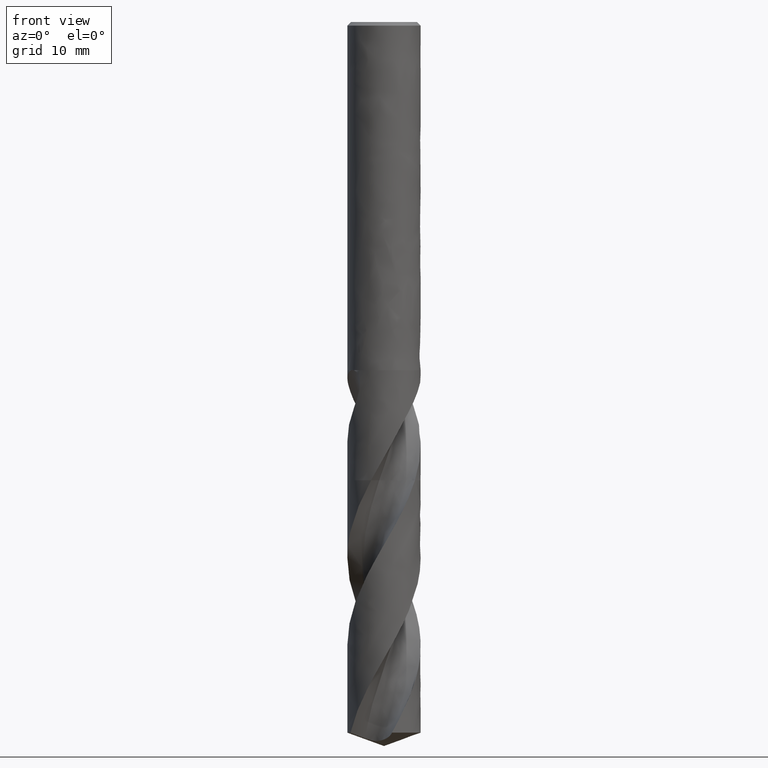
[diagram: clean part render]
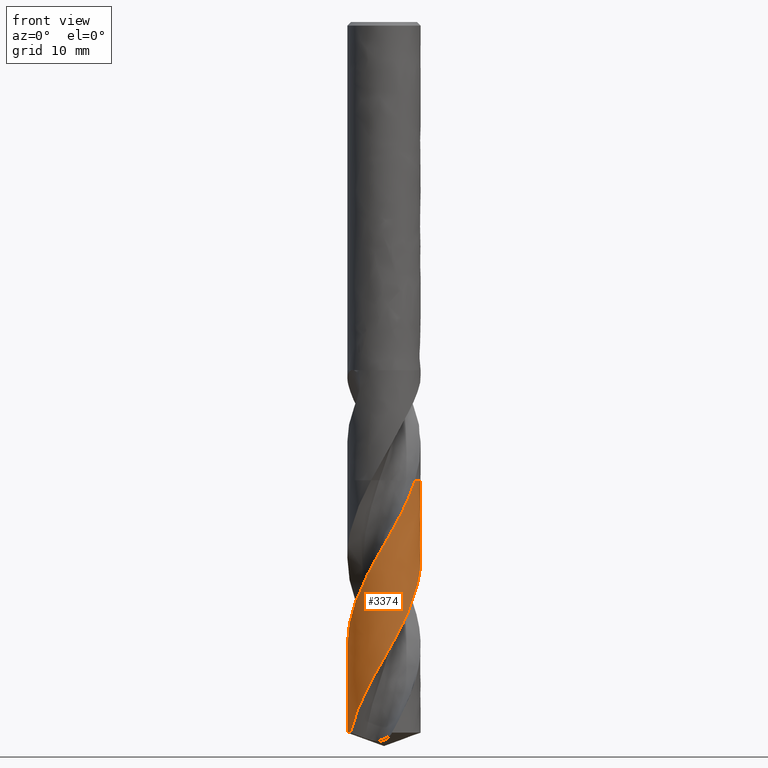
[diagram: same view with one face highlighted and labeled with its STEP entity id]
A machine part, front view. The second image highlights one B-rep face of the part: STEP entity #3374.
In plain terms, the highlighted face is a freeform B-spline surface patch.
Its self-contained STEP definition (entity closure, byte-faithful):
#1934 = VERTEX_POINT('', #1935);
#1935 = CARTESIAN_POINT('', (3.38773745448961, -2.12678982023335, -50.));
#2014 = EDGE_CURVE('', #2015, #1934, #2017, .T.);
#2015 = VERTEX_POINT('', #2016);
#2016 = CARTESIAN_POINT('', (1.40999590410393, 3.74324879622103, -50.));
#2017 = CIRCLE('', #2018, 4.);
#2018 = AXIS2_PLACEMENT_3D('', #2019, #2020, #2021);
#2019 = CARTESIAN_POINT('', (1.87469972832732E-31, 3.06161699786838E-15, -50.));
#2020 = DIRECTION('', (3.74939945665464E-33, 6.12323399573677E-17, -1.));
#2021 = DIRECTION('', (-1., 6.12323399573677E-17, 0.));
#3099 = EDGE_CURVE('', #2015, #3100, #3102, .T.);
#3100 = VERTEX_POINT('', #3101);
#3101 = CARTESIAN_POINT('', (-3.65660638406482, -1.62148997900584, -77.5441190629352));
#3102 = B_SPLINE_CURVE_WITH_KNOTS('', 3, (#3103, #3104, #3105, #3106, #3107, #3108, #3109, #3110, #3111, #3112, #3113, #3114, #3115, #3116, #3117, #3118, #3119, #3120, #3121, #3122, #3123, #3124, #3125, #3126, #3127, #3128, #3129, #3130, #3131, #3132, #3133, #3134, #3135, #3136, #3137, #3138, #3139, #3140, #3141, #3142, #3143, #3144, #3145, #3146, #3147, #3148, #3149, #3150, #3151, #3152, #3153, #3154, #3155, #3156, #3157, #3158, #3159, #3160, #3161, #3162, #3163, #3164, #3165, #3166, #3167, #3168, #3169, #3170, #3171, #3172, #3173, #3174, #3175, #3176, #3177, #3178, #3179, #3180, #3181, #3182, #3183, #3184, #3185, #3186, #3187, #3188, #3189, #3190, #3191, #3192, #3193, #3194, #3195, #3196, #3197, #3198, #3199, #3200, #3201, #3202, #3203, #3204, #3205, #3206, #3207, #3208, #3209, #3210, #3211, #3212, #3213, #3214, #3215, #3216, #3217, #3218, #3219, #3220, #3221, #3222, #3223, #3224, #3225, #3226, #3227, #3228, #3229, #3230, #3231, #3232, #3233, #3234, #3235, #3236, #3237, #3238, #3239, #3240, #3241, #3242, #3243, #3244, #3245, #3246, #3247, #3248, #3249, #3250, #3251, #3252, #3253, #3254, #3255, #3256, #3257, #3258, #3259), .UNSPECIFIED., .F., .U., (4, 3, 3, 3, 3, 3, 3, 3, 3, 3, 3, 3, 3, 3, 3, 3, 3, 3, 3, 3, 3, 3, 3, 3, 3, 3, 3, 3, 3, 3, 3, 3, 3, 3, 3, 3, 3, 3, 3, 3, 3, 3, 3, 3, 3, 3, 3, 3, 3, 3, 3, 3, 4), (11.4268068626108, 11.9616800757642, 12.6272618858301, 13.2926948839317, 13.9579844775517, 14.6231321257584, 15.2881389126281, 15.9530055552988, 16.6177323620253, 17.2823194138596, 17.9467661522799, 18.6110713334611, 19.2752331163804, 19.9392494876809, 20.6031178795623, 21.0459015644357, 21.1334563209178, 21.1918374463292, 21.8582133149037, 22.5244226005026, 23.190471233414, 23.8563642372132, 24.5221057489834, 25.1876991614211, 25.8531475318426, 26.5184533700216, 27.1836185664395, 27.8486443610939, 28.5135315119813, 29.1782805091412, 29.8428913615441, 30.5073635233811, 31.1716958404546, 31.8358867402595, 32.4999342546827, 33.163835860998, 33.6066352883651, 33.8035682643855, 33.8619519640975, 34.5283147803556, 35.194512992914, 35.8605523536288, 36.5264378115142, 37.1921735301299, 37.8577629314045, 38.5232089119411, 39.1885138886192, 39.8536797557561, 40.5187078586139, 41.1835989712556, 41.8483534409792, 42.5129713329847, 43.1484255799099), .UNSPECIFIED.);
#3103 = CARTESIAN_POINT('', (1.40999590410393, 3.74324879622103, -50.));
#3104 = CARTESIAN_POINT('', (1.49308468402006, 3.71195115993326, -50.1546105385522));
#3105 = CARTESIAN_POINT('', (1.57513999227531, 3.677881838887, -50.3092643671988));
#3106 = CARTESIAN_POINT('', (1.65594938710066, 3.6411305424773, -50.4638828975783));
#3107 = CARTESIAN_POINT('', (1.7565064199741, 3.59539821977894, -50.6562860293654));
#3108 = CARTESIAN_POINT('', (1.85518483827001, 3.54548861683502, -50.8487324283046));
#3109 = CARTESIAN_POINT('', (1.95160097727128, 3.49159757496677, -51.0411429557391));
#3110 = CARTESIAN_POINT('', (2.04799555938079, 3.43771858215347, -51.2335104636858));
#3111 = CARTESIAN_POINT('', (2.1421691952407, 3.37983754482088, -51.425924227606));
#3112 = CARTESIAN_POINT('', (2.23376045177126, 3.3181793568315, -51.6183025762352));
#3113 = CARTESIAN_POINT('', (2.32533196988081, 3.25653445652174, -51.8106394662691));
#3114 = CARTESIAN_POINT('', (2.41436140271467, 3.19108770037158, -52.0030223135103));
#3115 = CARTESIAN_POINT('', (2.50050828250362, 3.12209197960771, -52.1953689317543));
#3116 = CARTESIAN_POINT('', (2.58663678209458, 3.05311097969052, -52.3876745111477));
#3117 = CARTESIAN_POINT('', (2.66991973377181, 2.98055385726141, -52.5800258746878));
#3118 = CARTESIAN_POINT('', (2.75003855686753, 2.90470100625554, -52.77234137546));
#3119 = CARTESIAN_POINT('', (2.83014041283638, 2.82886421895228, -52.9646161487055));
#3120 = CARTESIAN_POINT('', (2.90711309246561, 2.74970127976023, -53.1569366847626));
#3121 = CARTESIAN_POINT('', (2.98066254811926, 2.66751771769922, -53.3492215093452));
#3122 = CARTESIAN_POINT('', (3.05419650388666, 2.58535147508471, -53.5414658116306));
#3123 = CARTESIAN_POINT('', (3.12433993648487, 2.50013093423394, -53.7337555456956));
#3124 = CARTESIAN_POINT('', (3.1908248690884, 2.4121850374312, -53.9260097493158));
#3125 = CARTESIAN_POINT('', (3.25729581846171, 2.32425763756716, -54.1182235176872));
#3126 = CARTESIAN_POINT('', (3.32013807548924, 2.23356866550899, -54.3104827833417));
#3127 = CARTESIAN_POINT('', (3.37911228012147, 2.14046728504135, -54.5027064126175));
#3128 = CARTESIAN_POINT('', (3.43807408577487, 2.04738547859006, -54.6948896280086));
#3129 = CARTESIAN_POINT('', (3.49319418578606, 1.95185329959305, -54.8871184980914));
#3130 = CARTESIAN_POINT('', (3.54426345611027, 1.85423745881731, -55.0793115852574));
#3131 = CARTESIAN_POINT('', (3.59532194424478, 1.75664222754914, -55.2714640949428));
#3132 = CARTESIAN_POINT('', (3.64235249250526, 1.65692374545173, -55.4636622527336));
#3133 = CARTESIAN_POINT('', (3.68517718456473, 1.55546427743088, -55.6558247034211));
#3134 = CARTESIAN_POINT('', (3.72799275302583, 1.45402642487047, -55.8479462148061));
#3135 = CARTESIAN_POINT('', (3.76662214380322, 1.35080590733129, -56.0401131067647));
#3136 = CARTESIAN_POINT('', (3.8009194666142, 1.24619870338291, -56.2322446047073));
#3137 = CARTESIAN_POINT('', (3.83520938593561, 1.14161408015742, -56.4243346287557));
#3138 = CARTESIAN_POINT('', (3.86518366074517, 1.03559896766727, -56.6164698154659));
#3139 = CARTESIAN_POINT('', (3.89072955841911, 0.928559908268641, -56.8085697014531));
#3140 = CARTESIAN_POINT('', (3.91626986307275, 0.821544284007818, -57.0006275290801));
#3141 = CARTESIAN_POINT('', (3.93739453044704, 0.713460013763939, -57.1927306496108));
#3142 = CARTESIAN_POINT('', (3.95402494523026, 0.604720375460381, -57.3847982952889));
#3143 = CARTESIAN_POINT('', (3.97065165384111, 0.496004970337218, -57.5768231377171));
#3144 = CARTESIAN_POINT('', (3.98279303072067, 0.386589413942062, -57.7688934296659));
#3145 = CARTESIAN_POINT('', (3.99040491914051, 0.276890919496153, -57.9609281305167));
#3146 = CARTESIAN_POINT('', (3.99548185915542, 0.203724755554885, -58.0890104936872));
#3147 = CARTESIAN_POINT('', (3.99854593530938, 0.130415944143399, -58.2171070254769));
#3148 = CARTESIAN_POINT('', (3.99959258297315, 0.0570891428044577, -58.3451938684983));
#3149 = CARTESIAN_POINT('', (3.9997995440344, 0.0425897146317942, -58.3705213878547));
#3150 = CARTESIAN_POINT('', (3.99992765696003, 0.0280892608451649, -58.3958490871068));
#3151 = CARTESIAN_POINT('', (3.99997691819654, 0.0135887414775058, -58.4211767794289));
#3152 = CARTESIAN_POINT('', (4.00000976537174, 0.00391985912608849, -58.4380651729468));
#3153 = CARTESIAN_POINT('', (4.00000755421438, -0.00574909163993609, -58.454953631869));
#3154 = CARTESIAN_POINT('', (3.99997028621707, -0.0154178267119553, -58.4718421005291));
#3155 = CARTESIAN_POINT('', (3.99954490054829, -0.125779038254809, -58.6646110458504));
#3156 = CARTESIAN_POINT('', (3.99454816156746, -0.236137512741472, -58.8574254826022));
#3157 = CARTESIAN_POINT('', (3.98500146307379, -0.34606840263295, -59.0502043824902));
#3158 = CARTESIAN_POINT('', (3.97545715109729, -0.455971811615203, -59.242935090833));
#3159 = CARTESIAN_POINT('', (3.96136111164163, -0.565494641915295, -59.4357113484275));
#3160 = CARTESIAN_POINT('', (3.94276962953226, -0.674216321694049, -59.6284519312699));
#3161 = CARTESIAN_POINT('', (3.92418263065605, -0.782911783840574, -59.8211460357858));
#3162 = CARTESIAN_POINT('', (3.90109461336426, -0.890851943184636, -60.0138858914972));
#3163 = CARTESIAN_POINT('', (3.87359613548959, -0.997623666078735, -60.2065898894798));
#3164 = CARTESIAN_POINT('', (3.84610408291706, -1.10437044066181, -60.3992488601917));
#3165 = CARTESIAN_POINT('', (3.81419228680592, -1.20999340531994, -60.5919535979782));
#3166 = CARTESIAN_POINT('', (3.77798496189085, -1.31408889643231, -60.7846225476999));
#3167 = CARTESIAN_POINT('', (3.74178587421672, -1.41816070560619, -60.977247664839));
#3168 = CARTESIAN_POINT('', (3.70127809926547, -1.52074911756994, -61.1699182352948));
#3169 = CARTESIAN_POINT('', (3.65661895988944, -1.62146161908851, -61.3625533942717));
#3170 = CARTESIAN_POINT('', (3.61196975528331, -1.72215171633456, -61.5551457000723));
#3171 = CARTESIAN_POINT('', (3.56315204619869, -1.82100953630146, -61.747783190695));
#3172 = CARTESIAN_POINT('', (3.51035498840895, -1.91765686590495, -61.9403853915604));
#3173 = CARTESIAN_POINT('', (3.45756943582882, -2.01428313471773, -62.1329456217407));
#3174 = CARTESIAN_POINT('', (3.40078399130775, -2.10874071561892, -62.3255511922651));
#3175 = CARTESIAN_POINT('', (3.3402176839801, -2.20066940352852, -62.5181212610423));
#3176 = CARTESIAN_POINT('', (3.2796643493367, -2.29257840125237, -62.7106500832782));
#3177 = CARTESIAN_POINT('', (3.21530674088565, -2.38199763365565, -62.9032244576476));
#3178 = CARTESIAN_POINT('', (3.14739208291229, -2.46858726327853, -63.095763162496));
#3179 = CARTESIAN_POINT('', (3.07949178170023, -2.55515858836038, -63.2882611657888));
#3180 = CARTESIAN_POINT('', (3.00800808177159, -2.63893701653183, -63.4808046522861));
#3181 = CARTESIAN_POINT('', (2.93321526015368, -2.71960442667708, -63.6733126502439));
#3182 = CARTESIAN_POINT('', (2.8584381132152, -2.80025493097807, -63.8657803034054));
#3183 = CARTESIAN_POINT('', (2.78032201152031, -2.87782935367839, -64.0582930517944));
#3184 = CARTESIAN_POINT('', (2.6991670235884, -2.95203275367549, -64.2507707035476));
#3185 = CARTESIAN_POINT('', (2.61802895474946, -3.0262206838382, -64.4432082277945));
#3186 = CARTESIAN_POINT('', (2.53381885739497, -3.097070461763, -64.6356906835666));
#3187 = CARTESIAN_POINT('', (2.44685978915617, -3.16431306482317, -64.828138049669));
#3188 = CARTESIAN_POINT('', (2.35991878972709, -3.23154169586381, -65.0205454280518));
#3189 = CARTESIAN_POINT('', (2.27019360318728, -3.29519280980748, -65.2129979762779));
#3190 = CARTESIAN_POINT('', (2.17802709346413, -3.35502577935493, -65.4054151681034));
#3191 = CARTESIAN_POINT('', (2.08587973731645, -3.41484631471884, -65.5977923727665));
#3192 = CARTESIAN_POINT('', (1.99125437721323, -3.47087479359434, -65.7902149353443));
#3193 = CARTESIAN_POINT('', (1.89451151963954, -3.52290024013639, -65.9826020268831));
#3194 = CARTESIAN_POINT('', (1.79778885030324, -3.57491483004167, -66.1749489712072));
#3195 = CARTESIAN_POINT('', (1.69891003816756, -3.62294929830343, -66.3673410732612));
#3196 = CARTESIAN_POINT('', (1.59825200864638, -3.66682294593805, -66.559698042081));
#3197 = CARTESIAN_POINT('', (1.49761516360689, -3.71068735992792, -66.7520145274668));
#3198 = CARTESIAN_POINT('', (1.39515767641042, -3.75041105762013, -66.9443757350445));
#3199 = CARTESIAN_POINT('', (1.29127071144342, -3.78584468114691, -67.1367021471128));
#3200 = CARTESIAN_POINT('', (1.18740586102728, -3.82127076187302, -67.3289876184122));
#3201 = CARTESIAN_POINT('', (1.0820682814948, -3.85242357240795, -67.5213178137617));
#3202 = CARTESIAN_POINT('', (0.975659236673937, -3.87918664849899, -67.7136130808872));
#3203 = CARTESIAN_POINT('', (0.869273163413689, -3.90594394698319, -67.9058668353538));
#3204 = CARTESIAN_POINT('', (0.761772106385481, -3.9283245078741, -68.0981656091511));
#3205 = CARTESIAN_POINT('', (0.653563898900314, -3.94624558663729, -68.290429163891));
#3206 = CARTESIAN_POINT('', (0.545379467507169, -3.96416272768422, -68.4826504734438));
#3207 = CARTESIAN_POINT('', (0.436444390669608, -3.97762961824081, -68.6749169208946));
#3208 = CARTESIAN_POINT('', (0.327171043884863, -3.98659743491156, -68.8671481382657));
#3209 = CARTESIAN_POINT('', (0.254289498001415, -3.99257865870853, -68.9953597168555));
#3210 = CARTESIAN_POINT('', (0.181240905987405, -3.99656078186648, -69.1235852663697));
#3211 = CARTESIAN_POINT('', (0.108148902913998, -3.99853770956314, -69.251801312544));
#3212 = CARTESIAN_POINT('', (0.0756415761224209, -3.99941693891761, -69.3088247998976));
#3213 = CARTESIAN_POINT('', (0.0431237307765978, -3.99989971652303, -69.3658497822506));
#3214 = CARTESIAN_POINT('', (0.0106061822396381, -3.99998593858757, -69.4228741546914));
#3215 = CARTESIAN_POINT('', (0.000965872995775944, -4.0000115003966, -69.4397798751255));
#3216 = CARTESIAN_POINT('', (-0.00867447814873041, -4.00000221089218, -69.4566856602826));
#3217 = CARTESIAN_POINT('', (-0.0183145904558098, -3.9999580717523, -69.4735914547201));
#3218 = CARTESIAN_POINT('', (-0.128342088159463, -3.99945428933179, -69.6665458726139));
#3219 = CARTESIAN_POINT('', (-0.238363443380186, -3.99440675503834, -69.8595452411269));
#3220 = CARTESIAN_POINT('', (-0.347957579527326, -3.98483695059793, -70.0525096305813));
#3221 = CARTESIAN_POINT('', (-0.457524643935411, -3.97526951007275, -70.2454263543322));
#3222 = CARTESIAN_POINT('', (-0.566711146596864, -3.96117800080761, -70.4383880887255));
#3223 = CARTESIAN_POINT('', (-0.675100341063876, -3.9426183596052, -70.6313146604185));
#3224 = CARTESIAN_POINT('', (-0.783463690635106, -3.92406314386231, -70.8241952296741));
#3225 = CARTESIAN_POINT('', (-0.891074946651873, -3.90103429186233, -71.0171211320287));
#3226 = CARTESIAN_POINT('', (-0.997525151050735, -3.87362150616467, -71.2100115639367));
#3227 = CARTESIAN_POINT('', (-1.10395075782277, -3.84621505478526, -71.4028574243299));
#3228 = CARTESIAN_POINT('', (-1.20925895809284, -3.81441560979175, -71.5957487204104));
#3229 = CARTESIAN_POINT('', (-1.31305037090825, -3.77834603013777, -71.7886045662491));
#3230 = CARTESIAN_POINT('', (-1.41681844389823, -3.74228456153719, -71.9814170441285));
#3231 = CARTESIAN_POINT('', (-1.5191129010354, -3.70194007777125, -72.1742745629408));
#3232 = CARTESIAN_POINT('', (-1.6195449810653, -3.65746825745709, -72.3670971461992));
#3233 = CARTESIAN_POINT('', (-1.71995498783923, -3.61300621128953, -72.559877350347));
#3234 = CARTESIAN_POINT('', (-1.8185458315325, -3.56439984866119, -72.7527021853197));
#3235 = CARTESIAN_POINT('', (-1.91494247402359, -3.51183645991387, -72.9454922981389));
#3236 = CARTESIAN_POINT('', (-2.01131834503368, -3.45928439748874, -73.1382408686796));
#3237 = CARTESIAN_POINT('', (-2.10554150331513, -3.402754945842, -73.3310342691964));
#3238 = CARTESIAN_POINT('', (-2.19725487788181, -3.34246480933227, -73.5237926557554));
#3239 = CARTESIAN_POINT('', (-2.28894881895567, -3.28218744792693, -73.7165101980129));
#3240 = CARTESIAN_POINT('', (-2.37817150691938, -3.21812641461839, -73.90927291245));
#3241 = CARTESIAN_POINT('', (-2.46458633789989, -3.15052601687991, -74.102000319514));
#3242 = CARTESIAN_POINT('', (-2.55098310028342, -3.08293975380245, -74.2946874289369));
#3243 = CARTESIAN_POINT('', (-2.63460789782517, -3.01178844941478, -74.4874197008728));
#3244 = CARTESIAN_POINT('', (-2.71514561621003, -2.93734306521649, -74.6801168371614));
#3245 = CARTESIAN_POINT('', (-2.79566665421297, -2.86291309960053, -74.8727740634315));
#3246 = CARTESIAN_POINT('', (-2.87313493625636, -2.78515981865629, -75.0654759449235));
#3247 = CARTESIAN_POINT('', (-2.94725782344943, -2.70438002546167, -75.2581432404938));
#3248 = CARTESIAN_POINT('', (-3.02136544194891, -2.62361687222751, -75.4507708482157));
#3249 = CARTESIAN_POINT('', (-3.09216031746436, -2.53979436186801, -75.6434428303063));
#3250 = CARTESIAN_POINT('', (-3.15937515902989, -2.45323227691648, -75.8360802924439));
#3251 = CARTESIAN_POINT('', (-3.22657618715754, -2.36668798148816, -76.0286781653248));
#3252 = CARTESIAN_POINT('', (-3.29022664452004, -2.27736926062665, -76.2213207333503));
#3253 = CARTESIAN_POINT('', (-3.35008747349715, -2.18561522686804, -76.4139283976164));
#3254 = CARTESIAN_POINT('', (-3.40993600371465, -2.09388004451567, -76.6064964895043));
#3255 = CARTESIAN_POINT('', (-3.46602059819903, -1.99967361856814, -76.7991095949238));
#3256 = CARTESIAN_POINT('', (-3.51813164001078, -1.90335224368877, -76.9916876111313));
#3257 = CARTESIAN_POINT('', (-3.56795603268706, -1.81125748146071, -77.175815242565));
#3258 = CARTESIAN_POINT('', (-3.61416685885146, -1.71719494224404, -77.3599823020643));
#3259 = CARTESIAN_POINT('', (-3.65660638406483, -1.62148997900584, -77.5441190629352));
#3374 = ADVANCED_FACE('', (#3375), #3508, .T.);
#3375 = FACE_OUTER_BOUND('', #3376, .T.);
#3376 = EDGE_LOOP('', (#3377, #3378, #3396, #3492, #3500, #3507));
#3377 = ORIENTED_EDGE('', *, *, #2014, .T.);
#3378 = ORIENTED_EDGE('', *, *, #3379, .T.);
#3379 = EDGE_CURVE('', #1934, #3380, #3382, .T.);
#3380 = VERTEX_POINT('', #3381);
#3381 = CARTESIAN_POINT('', (2.66334513394789, -2.98439151209691, -51.9550906752952));
#3382 = B_SPLINE_CURVE_WITH_KNOTS('', 3, (#3383, #3384, #3385, #3386, #3387, #3388, #3389, #3390, #3391, #3392, #3393, #3394, #3395), .UNSPECIFIED., .F., .U., (4, 3, 3, 3, 4), (4.83867168671351, 5.16076664063144, 5.82604712896318, 6.49118252045048, 7.09483472491919), .UNSPECIFIED.);
#3383 = CARTESIAN_POINT('', (3.38773745448961, -2.12678982023335, -50.));
#3384 = CARTESIAN_POINT('', (3.35923111498313, -2.17219721927099, -50.093020409842));
#3385 = CARTESIAN_POINT('', (3.32980810132896, -2.21703667288572, -50.1860633643976));
#3386 = CARTESIAN_POINT('', (3.29950390697985, -2.26125495418466, -50.2790883036903));
#3387 = CARTESIAN_POINT('', (3.23691121817849, -2.35258690278526, -50.4712293983797));
#3388 = CARTESIAN_POINT('', (3.1705140812465, -2.44133084675263, -50.6634162184879));
#3389 = CARTESIAN_POINT('', (3.10057151391889, -2.52714389916259, -50.8555664906883));
#3390 = CARTESIAN_POINT('', (3.03064420097795, -2.61293823585288, -51.0476748551541));
#3391 = CARTESIAN_POINT('', (2.9571445793266, -2.69583773783738, -51.2398305317654));
#3392 = CARTESIAN_POINT('', (2.88036123332915, -2.77552142227989, -51.4319527564352));
#3393 = CARTESIAN_POINT('', (2.81067551720118, -2.84783937797662, -51.606315759718));
#3394 = CARTESIAN_POINT('', (2.73825981165526, -2.91753579242191, -51.7807159452654));
#3395 = CARTESIAN_POINT('', (2.66334513394789, -2.98439151209691, -51.9550906752952));
#3396 = ORIENTED_EDGE('', *, *, #3397, .T.);
#3397 = EDGE_CURVE('', #3380, #3398, #3400, .T.);
#3398 = VERTEX_POINT('', #3399);
#3399 = CARTESIAN_POINT('', (-4., 4.40939399021479E-15, -68.010868656739));
#3400 = B_SPLINE_CURVE_WITH_KNOTS('', 3, (#3401, #3402, #3403, #3404, #3405, #3406, #3407, #3408, #3409, #3410, #3411, #3412, #3413, #3414, #3415, #3416, #3417, #3418, #3419, #3420, #3421, #3422, #3423, #3424, #3425, #3426, #3427, #3428, #3429, #3430, #3431, #3432, #3433, #3434, #3435, #3436, #3437, #3438, #3439, #3440, #3441, #3442, #3443, #3444, #3445, #3446, #3447, #3448, #3449, #3450, #3451, #3452, #3453, #3454, #3455, #3456, #3457, #3458, #3459, #3460, #3461, #3462, #3463, #3464, #3465, #3466, #3467, #3468, #3469, #3470, #3471, #3472, #3473, #3474, #3475, #3476, #3477, #3478, #3479, #3480, #3481, #3482, #3483, #3484, #3485, #3486, #3487, #3488, #3489, #3490, #3491), .UNSPECIFIED., .F., .U., (4, 3, 3, 3, 3, 3, 3, 3, 3, 3, 3, 3, 3, 3, 3, 3, 3, 3, 3, 3, 3, 3, 3, 3, 3, 3, 3, 3, 3, 3, 4), (0., 0.664861900716907, 1.32958219070295, 1.99416136335034, 2.65859896710306, 3.32289393629026, 3.9870445066926, 4.65104858476893, 5.31490371940804, 5.75768120385755, 5.84523571126752, 5.93283654552639, 6.5992055239461, 7.2654067191968, 7.93144619638874, 8.59732915985427, 9.26305994384756, 9.92864203652928, 10.5940784125031, 11.2593716993341, 11.9245239309669, 12.5895365087352, 13.2544102043083, 13.9191454914865, 14.5837424733719, 15.2482007297627, 15.9125192448011, 16.5766964238579, 17.2407303274721, 17.9046185165814, 18.5023905391002), .UNSPECIFIED.);
#3401 = CARTESIAN_POINT('', (2.66334513394789, -2.98439151209691, -51.9550906752952));
#3402 = CARTESIAN_POINT('', (2.58083418700958, -3.05802633116634, -52.1471468188599));
#3403 = CARTESIAN_POINT('', (2.49526036964247, -3.12824216542154, -52.3392525789399));
#3404 = CARTESIAN_POINT('', (2.40695748820708, -3.19477004649221, -52.531326386096));
#3405 = CARTESIAN_POINT('', (2.31867341464076, -3.26128375760991, -52.7233592829335));
#3406 = CARTESIAN_POINT('', (2.2276230671095, -3.32414000899573, -52.9154417849435));
#3407 = CARTESIAN_POINT('', (2.13416083513965, -3.3830988057927, -53.1074924458519));
#3408 = CARTESIAN_POINT('', (2.04071844481093, -3.44204508588359, -53.2995023352079));
#3409 = CARTESIAN_POINT('', (1.94482500398406, -3.49712097265612, -53.491562041507));
#3410 = CARTESIAN_POINT('', (1.84685184061415, -3.54811756834805, -53.6835895091894));
#3411 = CARTESIAN_POINT('', (1.74889954752278, -3.59910330072681, -53.8755760711116));
#3412 = CARTESIAN_POINT('', (1.64882757600364, -3.6460327806806, -54.0676127156934));
#3413 = CARTESIAN_POINT('', (1.54702176720782, -3.6887292733115, -54.2596169432489));
#3414 = CARTESIAN_POINT('', (1.44523781302592, -3.73141660030271, -54.4515799533305));
#3415 = CARTESIAN_POINT('', (1.34167856770728, -3.76989044284815, -54.6435928539891));
#3416 = CARTESIAN_POINT('', (1.23674325968468, -3.80400658643285, -54.8355737080639));
#3417 = CARTESIAN_POINT('', (1.13183076160596, -3.83811531414071, -55.027512830975));
#3418 = CARTESIAN_POINT('', (1.0254979953223, -3.86788276583656, -55.219501249554));
#3419 = CARTESIAN_POINT('', (0.918155687471622, -3.89319793146502, -55.4114581087629));
#3420 = CARTESIAN_POINT('', (0.810837056216372, -3.91850751330321, -55.603372627864));
#3421 = CARTESIAN_POINT('', (0.702462857804369, -3.93937775086245, -55.7953363643116));
#3422 = CARTESIAN_POINT('', (0.593450628026072, -3.95573208800792, -55.9872684241776));
#3423 = CARTESIAN_POINT('', (0.484462850893081, -3.97208275669522, -56.179157431566));
#3424 = CARTESIAN_POINT('', (0.374791269449226, -3.98392651293154, -56.3710960173407));
#3425 = CARTESIAN_POINT('', (0.264856128149126, -3.99122177176137, -56.5630025440492));
#3426 = CARTESIAN_POINT('', (0.191531689160004, -3.99608755675653, -56.6910001819551));
#3427 = CARTESIAN_POINT('', (0.118073260599773, -3.9989319583041, -56.8190139040674));
#3428 = CARTESIAN_POINT('', (0.0446060520856528, -3.99975127978195, -56.9470195387544));
#3429 = CARTESIAN_POINT('', (0.030078698102792, -3.99991329183297, -56.9723312826536));
#3430 = CARTESIAN_POINT('', (0.0155506727807592, -3.99999615396227, -56.9976432715955));
#3431 = CARTESIAN_POINT('', (0.00102293644221313, -3.99999986920012, -57.0229553142618));
#3432 = CARTESIAN_POINT('', (-0.0135124868135038, -4.00000358640378, -57.0482807500385));
#3433 = CARTESIAN_POINT('', (-0.0280477306716661, -3.9999280729234, -57.0736064243235));
#3434 = CARTESIAN_POINT('', (-0.0425818221437023, -3.99977334213114, -57.0989321520284));
#3435 = CARTESIAN_POINT('', (-0.15314090264125, -3.99859632366048, -57.2915819074925));
#3436 = CARTESIAN_POINT('', (-0.263659178527881, -3.99283127926215, -57.4842814670293));
#3437 = CARTESIAN_POINT('', (-0.373709811471483, -3.98250435992377, -57.6769491520702));
#3438 = CARTESIAN_POINT('', (-0.483732735076047, -3.97218004077133, -57.8695683258572));
#3439 = CARTESIAN_POINT('', (-0.593336002810586, -3.95729165108315, -58.0622368833103));
#3440 = CARTESIAN_POINT('', (-0.702096331780125, -3.93790054989989, -58.2548737370849));
#3441 = CARTESIAN_POINT('', (-0.810830259552254, -3.91851415584004, -58.4474638289229));
#3442 = CARTESIAN_POINT('', (-0.918768374158181, -3.89461895441635, -58.6401035703124));
#3443 = CARTESIAN_POINT('', (-1.02549590628376, -3.86631066343559, -58.8327112475885));
#3444 = CARTESIAN_POINT('', (-1.13219835832876, -3.83800902466728, -59.0252736636657));
#3445 = CARTESIAN_POINT('', (-1.23773513847216, -3.80528465757003, -59.217886078002));
#3446 = CARTESIAN_POINT('', (-1.34170276209515, -3.76826667025921, -59.4104661443861));
#3447 = CARTESIAN_POINT('', (-1.44564662517919, -3.73125714296026, -59.6030021989325));
#3448 = CARTESIAN_POINT('', (-1.5480646706709, -3.68994077687335, -59.795588126));
#3449 = CARTESIAN_POINT('', (-1.64856562007885, -3.64447957825175, -59.9881420214995));
#3450 = CARTESIAN_POINT('', (-1.74904412254829, -3.59902853341216, -60.1806529099878));
#3451 = CARTESIAN_POINT('', (-1.84764879004915, -3.54941527845426, -60.3732130389155));
#3452 = CARTESIAN_POINT('', (-1.94400195694267, -3.4958341481545, -60.5657417350298));
#3453 = CARTESIAN_POINT('', (-2.04033402911861, -3.44226474843763, -60.7582282805993));
#3454 = CARTESIAN_POINT('', (-2.13445722307346, -3.38470606514278, -60.9507638564175));
#3455 = CARTESIAN_POINT('', (-2.22601168123908, -3.32338261339063, -61.1432679716884));
#3456 = CARTESIAN_POINT('', (-2.31754645240018, -3.26207234805339, -61.3357306926955));
#3457 = CARTESIAN_POINT('', (-2.406552329742, -3.19697305295811, -61.5282428272425));
#3458 = CARTESIAN_POINT('', (-2.49269107505834, -3.12833681120248, -61.7207230725086));
#3459 = CARTESIAN_POINT('', (-2.57881155727473, -3.05971512167346, -61.9131625081954));
#3460 = CARTESIAN_POINT('', (-2.66210133923744, -2.98752997377738, -62.1056516498364));
#3461 = CARTESIAN_POINT('', (-2.74224544044444, -2.91205939918155, -62.298108724402));
#3462 = CARTESIAN_POINT('', (-2.82237271477645, -2.8366046702176, -62.4905253911137));
#3463 = CARTESIAN_POINT('', (-2.89938832848619, -2.75783506492886, -62.6829914304679));
#3464 = CARTESIAN_POINT('', (-2.97300087244185, -2.6760541497623, -62.8754259521376));
#3465 = CARTESIAN_POINT('', (-3.04659804304662, -2.59429031384115, -63.0678202855015));
#3466 = CARTESIAN_POINT('', (-3.11682480127357, -2.50948166478371, -63.2602633282837));
#3467 = CARTESIAN_POINT('', (-3.18341500406463, -2.42195559659879, -63.4526753346047));
#3468 = CARTESIAN_POINT('', (-3.24999134460915, -2.33444774893106, -63.6450472860443));
#3469 = CARTESIAN_POINT('', (-3.31296122389774, -2.24418609591503, -63.8374679953353));
#3470 = CARTESIAN_POINT('', (-3.37208712673744, -2.1515176991351, -64.0298574339126));
#3471 = CARTESIAN_POINT('', (-3.43120072780009, -2.05886858300718, -64.2222068438075));
#3472 = CARTESIAN_POINT('', (-3.48649654705738, -1.96377528584506, -64.4146054656782));
#3473 = CARTESIAN_POINT('', (-3.53776768769698, -1.86660113250988, -64.6069723705707));
#3474 = CARTESIAN_POINT('', (-3.58902812618995, -1.76944726294495, -64.799299121513));
#3475 = CARTESIAN_POINT('', (-3.63628622745779, -1.67017429752442, -64.9916752541929));
#3476 = CARTESIAN_POINT('', (-3.67936623738116, -1.56916031405959, -65.1840196690938));
#3477 = CARTESIAN_POINT('', (-3.72243718720363, -1.46816757471434, -65.3763236322907));
#3478 = CARTESIAN_POINT('', (-3.76134935273426, -1.36539328680511, -65.5686764420346));
#3479 = CARTESIAN_POINT('', (-3.79595825373823, -1.26122992982114, -65.7609982385462));
#3480 = CARTESIAN_POINT('', (-3.83055979158297, -1.15708873393909, -65.9532791179536));
#3481 = CARTESIAN_POINT('', (-3.86087460935068, -1.05151469437288, -66.1456082759216));
#3482 = CARTESIAN_POINT('', (-3.88679075593633, -0.944911434774678, -66.33790671605));
#3483 = CARTESIAN_POINT('', (-3.91270131192434, -0.838331171493837, -66.5301636738075));
#3484 = CARTESIAN_POINT('', (-3.93422611576845, -0.730676998624477, -66.7224691790793));
#3485 = CARTESIAN_POINT('', (-3.95128714131957, -0.622358358859837, -66.9147435687558));
#3486 = CARTESIAN_POINT('', (-3.96834442302737, -0.514063488358898, -67.1069757660573));
#3487 = CARTESIAN_POINT('', (-3.9809468840025, -0.405060376942762, -67.2992569764452));
#3488 = CARTESIAN_POINT('', (-3.98905068508423, -0.295761106011536, -67.4915066716266));
#3489 = CARTESIAN_POINT('', (-3.99634743420883, -0.197346874042687, -67.6646103523404));
#3490 = CARTESIAN_POINT('', (-4., -0.0986589438872352, -67.8377504870701));
#3491 = CARTESIAN_POINT('', (-4., 4.35908192721378E-15, -68.010868656739));
#3492 = ORIENTED_EDGE('', *, *, #3493, .T.);
#3493 = EDGE_CURVE('', #3398, #3494, #3496, .T.);
#3494 = VERTEX_POINT('', #3495);
#3495 = CARTESIAN_POINT('', (-4., 4.99313721998571E-15, -77.5441190629352));
#3496 = LINE('', #3497, #3498);
#3497 = CARTESIAN_POINT('', (-4., 4.40939399021479E-15, -68.010868656739));
#3498 = VECTOR('', #3499, 9.5332504061962);
#3499 = DIRECTION('', (0., 5.83743229770919E-16, -9.5332504061962));
#3500 = ORIENTED_EDGE('', *, *, #3501, .F.);
#3501 = EDGE_CURVE('', #3100, #3494, #3502, .T.);
#3502 = CIRCLE('', #3503, 4.);
#3503 = AXIS2_PLACEMENT_3D('', #3504, #3505, #3506);
#3504 = CARTESIAN_POINT('', (2.90743877881332E-31, 4.74820786015624E-15, -77.5441190629352));
#3505 = DIRECTION('', (3.74939945665464E-33, 6.12323399573677E-17, -1.));
#3506 = DIRECTION('', (-1., 6.12323399573677E-17, 0.));
#3507 = ORIENTED_EDGE('', *, *, #3099, .F.);
#3508 = (
   BOUNDED_SURFACE ()
   B_SPLINE_SURFACE (2, 1, ((#3509, #3510), (#3511, #3512), (#3513, #3514), (#3515, #3516), (#3517, #3518), (#3519, #3520), (#3521, #3522)), .UNSPECIFIED., .F., .F., .U.)
   B_SPLINE_SURFACE_WITH_KNOTS ((3, 2, 2, 3), (2, 2), (7.78774395286727, 12.5663706143592, 18.8495559215388, 25.1327412287183), (0.303458523905964, 1.), .UNSPECIFIED.)
   GEOMETRIC_REPRESENTATION_ITEM ()
   RATIONAL_B_SPLINE_SURFACE (((0.893317840504648, 0.893317840504648), (0.777242389653407, 0.777242389653407), (1., 1.), (0.707106781186547, 0.707106781186548), (1., 1.), (0.707106781186547, 0.707106781186548), (1., 1.)))
   REPRESENTATION_ITEM ('')
   SURFACE ()
);
#3509 = CARTESIAN_POINT('', (1.40999590410393, 3.74324879622103, -50.));
#3510 = CARTESIAN_POINT('', (1.40999590410393, 3.74324879622103, -77.5441190629352));
#3511 = CARTESIAN_POINT('', (4., 2.767653700722, -50.));
#3512 = CARTESIAN_POINT('', (4., 2.767653700722, -77.5441190629352));
#3513 = CARTESIAN_POINT('', (4., 3.30654635769785E-15, -50.));
#3514 = CARTESIAN_POINT('', (4., 4.99313721998571E-15, -77.5441190629352));
#3515 = CARTESIAN_POINT('', (4., -4., -50.));
#3516 = CARTESIAN_POINT('', (4., -4., -77.5441190629352));
#3517 = CARTESIAN_POINT('', (4.89858719658941E-16, -4., -50.));
#3518 = CARTESIAN_POINT('', (4.89858719658942E-16, -4., -77.5441190629352));
#3519 = CARTESIAN_POINT('', (-4., -4., -50.));
#3520 = CARTESIAN_POINT('', (-4., -4., -77.5441190629352));
#3521 = CARTESIAN_POINT('', (-4., 3.30654635769785E-15, -50.));
#3522 = CARTESIAN_POINT('', (-4., 4.99313721998571E-15, -77.5441190629352));